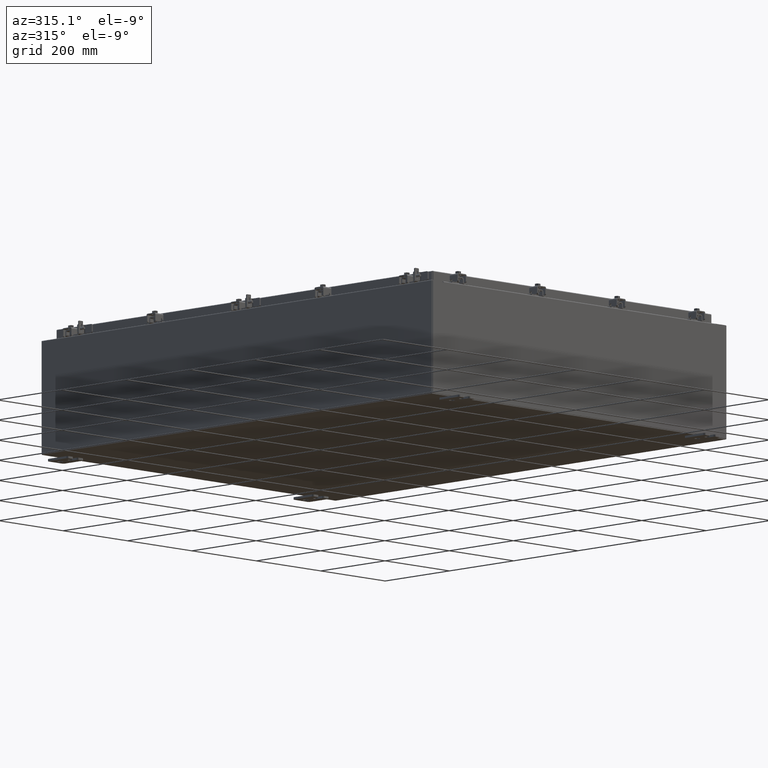
[diagram: clean part render]
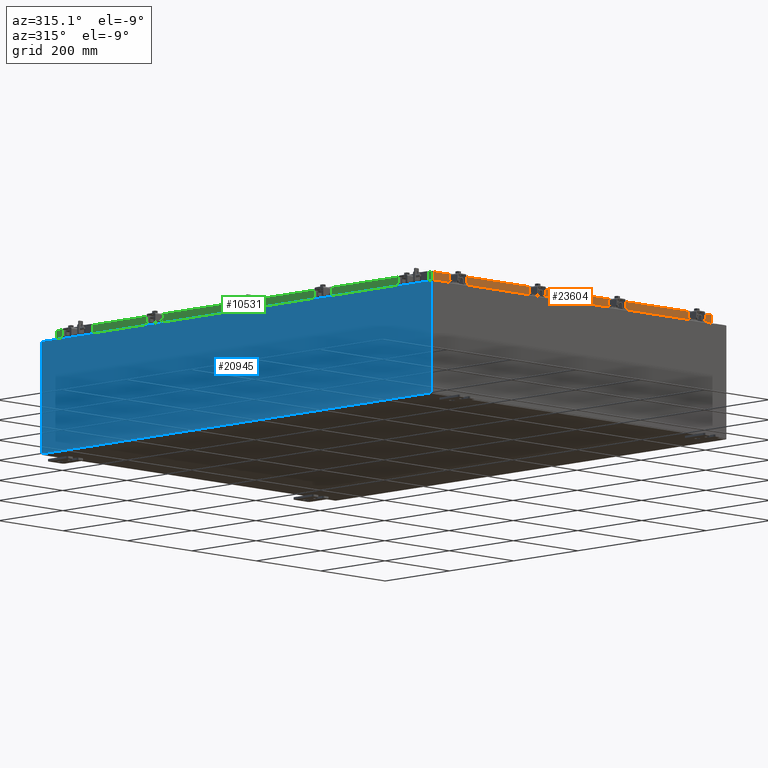
[diagram: same view with three faces highlighted in distinct colors, each labeled with its STEP entity id]
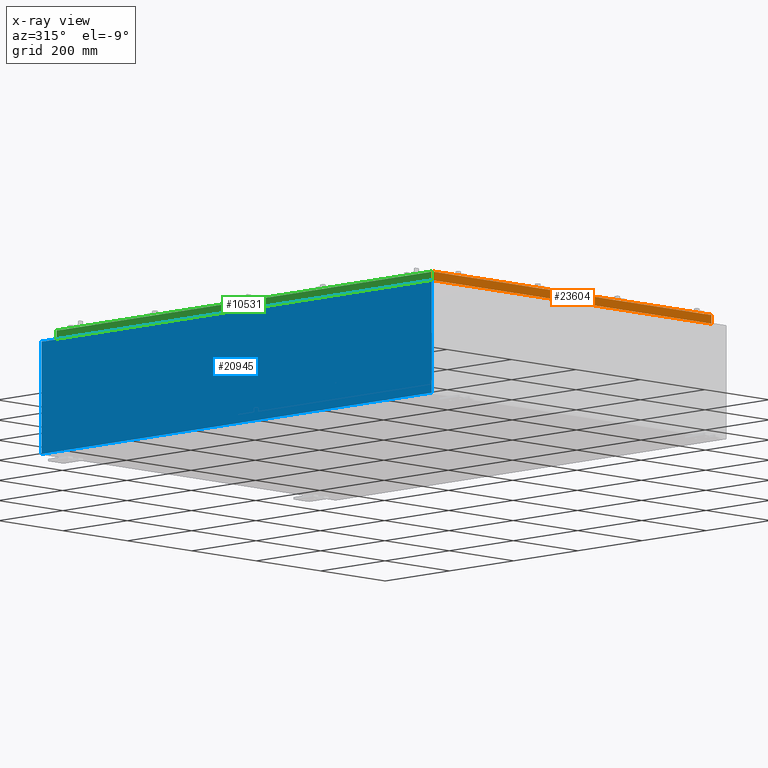
[diagram: x-ray of the same camera — body ghosted, the three highlighted faces saturated]
A machine part, auxiliary view with three faces highlighted in distinct colors.
The next image is the same camera in x-ray (body ghosted, the three faces saturated) — at least one of them is partly hidden behind the body in this view.
Their STEP definitions:

[orange] entity #23604 — the highlighted planar face has unit normal (0, 1, 0).
#542 = VERTEX_POINT ( 'NONE', #11356 ) ;
#703 = LINE ( 'NONE', #5207, #16990 ) ;
#742 = EDGE_CURVE ( 'NONE', #4543, #4402, #3364, .T. ) ;
#1936 = EDGE_CURVE ( 'NONE', #15648, #16481, #8737, .T. ) ;
#2306 = EDGE_CURVE ( 'NONE', #16662, #4543, #703, .T. ) ;
#2374 = VECTOR ( 'NONE', #17354, 39.37007874015748100 ) ;
#2463 = CARTESIAN_POINT ( 'NONE',  ( 17.07800000000000300, -23.09399999999999400, -0.08769999999999589200 ) ) ;
#2570 = CARTESIAN_POINT ( 'NONE',  ( 17.07800000000000300, -23.09400000000000100, -0.8499999999999996400 ) ) ;
#2731 = CARTESIAN_POINT ( 'NONE',  ( -2.955348287419252300E-015, -23.09399999999999400, 2.608136560115737200E-016 ) ) ;
#3364 = LINE ( 'NONE', #15265, #19686 ) ;
#3397 = LINE ( 'NONE', #4857, #24746 ) ;
#4312 = CARTESIAN_POINT ( 'NONE',  ( -16.98915786437626700, -23.09399999999999400, -0.8499999999999954300 ) ) ;
#4402 = VERTEX_POINT ( 'NONE', #9738 ) ;
#4543 = VERTEX_POINT ( 'NONE', #25132 ) ;
#4857 = CARTESIAN_POINT ( 'NONE',  ( 16.23915786437626700, -23.09400000000000100, -0.8499999999999990900 ) ) ;
#5143 = DIRECTION ( 'NONE',  ( -0.0000000000000000000, 3.607333059089402100E-031, -1.000000000000000000 ) ) ;
#5207 = CARTESIAN_POINT ( 'NONE',  ( 16.98915786437627100, -23.09399999999999400, -0.07470000000000000300 ) ) ;
#5567 = LINE ( 'NONE', #2570, #26914 ) ;
#6565 = ORIENTED_EDGE ( 'NONE', *, *, #2306, .F. ) ;
#6708 = LINE ( 'NONE', #2463, #2374 ) ;
#6872 = DIRECTION ( 'NONE',  ( -1.000000000000000000, 1.279703943630056600E-016, 1.239713195391617400E-016 ) ) ;
#7443 = FACE_OUTER_BOUND ( 'NONE', #26455, .T. ) ;
#7490 = EDGE_CURVE ( 'NONE', #4402, #542, #3397, .T. ) ;
#8059 = VECTOR ( 'NONE', #16994, 39.37007874015748100 ) ;
#8737 = LINE ( 'NONE', #25875, #8059 ) ;
#9738 = CARTESIAN_POINT ( 'NONE',  ( 16.23915786437626700, -23.09400000000000100, -0.8499999999999990900 ) ) ;
#10540 = ORIENTED_EDGE ( 'NONE', *, *, #25725, .F. ) ;
#11356 = CARTESIAN_POINT ( 'NONE',  ( -16.23915786437626400, -23.09400000000000100, -0.8499999999999990900 ) ) ;
#11376 = DIRECTION ( 'NONE',  ( 1.279703943630056600E-016, 1.000000000000000000, 3.607333059089401300E-031 ) ) ;
#12205 = ORIENTED_EDGE ( 'NONE', *, *, #7490, .F. ) ;
#12399 = ORIENTED_EDGE ( 'NONE', *, *, #1936, .T. ) ;
#14480 = DIRECTION ( 'NONE',  ( -1.000000000000000000, 0.0000000000000000000, 0.0000000000000000000 ) ) ;
#15210 = DIRECTION ( 'NONE',  ( -1.000000000000000000, 1.279703943630056600E-016, 1.239713195391617400E-016 ) ) ;
#15265 = CARTESIAN_POINT ( 'NONE',  ( 17.07800000000000300, -23.09400000000000100, -0.8499999999999996400 ) ) ;
#15301 = AXIS2_PLACEMENT_3D ( 'NONE', #2731, #11376, #26251 ) ;
#15648 = VERTEX_POINT ( 'NONE', #24840 ) ;
#16481 = VERTEX_POINT ( 'NONE', #4312 ) ;
#16662 = VERTEX_POINT ( 'NONE', #24055 ) ;
#16990 = VECTOR ( 'NONE', #5143, 39.37007874015748100 ) ;
#16994 = DIRECTION ( 'NONE',  ( 0.0000000000000000000, 3.607333059089402100E-031, -1.000000000000000000 ) ) ;
#17354 = DIRECTION ( 'NONE',  ( 1.000000000000000000, -1.279703943630056600E-016, 1.368455531567204500E-048 ) ) ;
#19686 = VECTOR ( 'NONE', #15210, 39.37007874015748100 ) ;
#20847 = EDGE_CURVE ( 'NONE', #542, #16481, #5567, .T. ) ;
#22483 = ORIENTED_EDGE ( 'NONE', *, *, #20847, .F. ) ;
#23604 = ADVANCED_FACE ( 'NONE', ( #7443 ), #24093, .F. ) ;
#24055 = CARTESIAN_POINT ( 'NONE',  ( 16.98915786437627100, -23.09399999999999400, -0.08769999999999589200 ) ) ;
#24093 = PLANE ( 'NONE',  #15301 ) ;
#24401 = ORIENTED_EDGE ( 'NONE', *, *, #742, .F. ) ;
#24746 = VECTOR ( 'NONE', #14480, 39.37007874015748100 ) ;
#24840 = CARTESIAN_POINT ( 'NONE',  ( -16.98915786437626700, -23.09399999999999400, -0.08769999999999589200 ) ) ;
#25132 = CARTESIAN_POINT ( 'NONE',  ( 16.98915786437627100, -23.09399999999999400, -0.8499999999999996400 ) ) ;
#25725 = EDGE_CURVE ( 'NONE', #15648, #16662, #6708, .T. ) ;
#25875 = CARTESIAN_POINT ( 'NONE',  ( -16.98915786437626700, -23.09399999999999400, 2.608136560115737200E-016 ) ) ;
#26251 = DIRECTION ( 'NONE',  ( -1.000000000000000000, 1.279703943630056600E-016, 0.0000000000000000000 ) ) ;
#26455 = EDGE_LOOP ( 'NONE', ( #10540, #12399, #22483, #12205, #24401, #6565 ) ) ;
#26914 = VECTOR ( 'NONE', #6872, 39.37007874015748100 ) ;

[blue] entity #20945 — the highlighted planar face has unit normal (1, 0, 0).
#779 = CARTESIAN_POINT ( 'NONE',  ( -18.00000000000000400, -23.92529999999999600, -6.367630515150756800E-014 ) ) ;
#957 = CARTESIAN_POINT ( 'NONE',  ( -18.00000000000000400, 23.92529999999998900, 0.01299999999999984700 ) ) ;
#1466 = AXIS2_PLACEMENT_3D ( 'NONE', #4988, #22047, #9322 ) ;
#2223 = VERTEX_POINT ( 'NONE', #18523 ) ;
#2738 = CARTESIAN_POINT ( 'NONE',  ( -18.00000000000003900, -23.92529999999998600, 9.837600000000000100 ) ) ;
#2858 = PLANE ( 'NONE',  #1466 ) ;
#3511 = VECTOR ( 'NONE', #13635, 39.37007874015748100 ) ;
#4414 = ORIENTED_EDGE ( 'NONE', *, *, #17294, .T. ) ;
#4988 = CARTESIAN_POINT ( 'NONE',  ( -18.00000000000000400, 0.0000000000000000000, -6.367630515150756800E-014 ) ) ;
#6137 = CARTESIAN_POINT ( 'NONE',  ( -18.00000000000000400, -23.92529999999998600, 0.01299999999999984700 ) ) ;
#7597 = ORIENTED_EDGE ( 'NONE', *, *, #14313, .T. ) ;
#8663 = CARTESIAN_POINT ( 'NONE',  ( -18.00000000000000400, 23.92529999999998900, 0.01299999999999984300 ) ) ;
#9051 = DIRECTION ( 'NONE',  ( 3.523082860860888200E-015, 0.0000000000000000000, -1.000000000000000000 ) ) ;
#9322 = DIRECTION ( 'NONE',  ( 3.523082860860887800E-015, 0.0000000000000000000, -1.000000000000000000 ) ) ;
#10299 = VERTEX_POINT ( 'NONE', #6137 ) ;
#12453 = VERTEX_POINT ( 'NONE', #2738 ) ;
#12888 = LINE ( 'NONE', #26395, #3511 ) ;
#13173 = ORIENTED_EDGE ( 'NONE', *, *, #27468, .F. ) ;
#13198 = EDGE_CURVE ( 'NONE', #12453, #2223, #12888, .T. ) ;
#13273 = DIRECTION ( 'NONE',  ( -3.523082860860888200E-015, 0.0000000000000000000, 1.000000000000000000 ) ) ;
#13635 = DIRECTION ( 'NONE',  ( 0.0000000000000000000, 1.000000000000000000, 0.0000000000000000000 ) ) ;
#13658 = VECTOR ( 'NONE', #26484, 39.37007874015748100 ) ;
#14313 = EDGE_CURVE ( 'NONE', #10299, #12453, #27137, .T. ) ;
#17294 = EDGE_CURVE ( 'NONE', #2223, #17823, #26666, .T. ) ;
#17823 = VERTEX_POINT ( 'NONE', #8663 ) ;
#18523 = CARTESIAN_POINT ( 'NONE',  ( -18.00000000000003900, 23.92529999999998900, 9.837600000000000100 ) ) ;
#19954 = LINE ( 'NONE', #957, #13658 ) ;
#20945 = ADVANCED_FACE ( 'NONE', ( #21217 ), #2858, .F. ) ;
#21217 = FACE_OUTER_BOUND ( 'NONE', #26183, .T. ) ;
#22047 = DIRECTION ( 'NONE',  ( 1.000000000000000000, 0.0000000000000000000, 3.523082860860887800E-015 ) ) ;
#22794 = VECTOR ( 'NONE', #13273, 39.37007874015748100 ) ;
#23623 = ORIENTED_EDGE ( 'NONE', *, *, #13198, .T. ) ;
#23937 = CARTESIAN_POINT ( 'NONE',  ( -18.00000000000000400, 23.92529999999998900, -6.367630515150756800E-014 ) ) ;
#26001 = VECTOR ( 'NONE', #9051, 39.37007874015748100 ) ;
#26183 = EDGE_LOOP ( 'NONE', ( #23623, #4414, #13173, #7597 ) ) ;
#26395 = CARTESIAN_POINT ( 'NONE',  ( -18.00000000000003900, -23.92529999999998900, 9.837600000000000100 ) ) ;
#26484 = DIRECTION ( 'NONE',  ( -0.0000000000000000000, 1.000000000000000000, -0.0000000000000000000 ) ) ;
#26666 = LINE ( 'NONE', #23937, #26001 ) ;
#27137 = LINE ( 'NONE', #779, #22794 ) ;
#27468 = EDGE_CURVE ( 'NONE', #10299, #17823, #19954, .T. ) ;

[green] entity #10531 — the highlighted planar face has unit normal (1, 0, -0).
#326 = CARTESIAN_POINT ( 'NONE',  ( -17.07800000000000300, 23.00515786437626200, -0.8499999999999940900 ) ) ;
#1157 = CARTESIAN_POINT ( 'NONE',  ( -17.07799999999999900, 23.00515786437626200, 2.090458211578980900E-013 ) ) ;
#1253 = VECTOR ( 'NONE', #12754, 39.37007874015748100 ) ;
#1932 = CARTESIAN_POINT ( 'NONE',  ( -17.07799999999999900, 23.00515786437626200, -0.08770000000000007000 ) ) ;
#2451 = PLANE ( 'NONE',  #17928 ) ;
#2792 = EDGE_CURVE ( 'NONE', #6550, #22798, #24669, .T. ) ;
#3324 = LINE ( 'NONE', #1157, #14010 ) ;
#3332 = CARTESIAN_POINT ( 'NONE',  ( -17.07800000000000300, -23.09399999999999400, -0.8499999999999996400 ) ) ;
#3924 = EDGE_LOOP ( 'NONE', ( #4391, #10311, #21707, #11883, #7893, #7414 ) ) ;
#4391 = ORIENTED_EDGE ( 'NONE', *, *, #24996, .F. ) ;
#4589 = DIRECTION ( 'NONE',  ( -2.818880942772360100E-015, 0.0000000000000000000, -1.000000000000000000 ) ) ;
#4632 = DIRECTION ( 'NONE',  ( 3.417889107165661600E-031, -1.000000000000000000, -9.316371385484559400E-046 ) ) ;
#4712 = VERTEX_POINT ( 'NONE', #26941 ) ;
#4739 = EDGE_CURVE ( 'NONE', #22798, #20082, #11934, .T. ) ;
#6055 = EDGE_CURVE ( 'NONE', #24595, #4712, #6487, .T. ) ;
#6487 = LINE ( 'NONE', #21023, #17135 ) ;
#6550 = VERTEX_POINT ( 'NONE', #17319 ) ;
#7414 = ORIENTED_EDGE ( 'NONE', *, *, #6055, .F. ) ;
#7681 = VECTOR ( 'NONE', #11482, 39.37007874015748100 ) ;
#7893 = ORIENTED_EDGE ( 'NONE', *, *, #11427, .F. ) ;
#10311 = ORIENTED_EDGE ( 'NONE', *, *, #16865, .T. ) ;
#10531 = ADVANCED_FACE ( 'NONE', ( #12965 ), #2451, .F. ) ;
#11024 = CARTESIAN_POINT ( 'NONE',  ( -17.07799999999998900, -22.25515786437625500, -0.8500000000000026400 ) ) ;
#11427 = EDGE_CURVE ( 'NONE', #4712, #6550, #15601, .T. ) ;
#11482 = DIRECTION ( 'NONE',  ( -0.0000000000000000000, 1.000000000000000000, -0.0000000000000000000 ) ) ;
#11883 = ORIENTED_EDGE ( 'NONE', *, *, #2792, .F. ) ;
#11934 = LINE ( 'NONE', #12601, #1253 ) ;
#12601 = CARTESIAN_POINT ( 'NONE',  ( -17.07800000000000300, -23.09399999999999400, -0.8499999999999996400 ) ) ;
#12754 = DIRECTION ( 'NONE',  ( -4.379057701015054300E-047, 1.000000000000000000, 1.212498568245375500E-016 ) ) ;
#12965 = FACE_OUTER_BOUND ( 'NONE', #3924, .T. ) ;
#14010 = VECTOR ( 'NONE', #24615, 39.37007874015748100 ) ;
#14417 = VECTOR ( 'NONE', #4632, 39.37007874015748100 ) ;
#15601 = LINE ( 'NONE', #3332, #20591 ) ;
#16865 = EDGE_CURVE ( 'NONE', #17770, #20082, #3324, .T. ) ;
#17135 = VECTOR ( 'NONE', #20356, 39.37007874015748100 ) ;
#17319 = CARTESIAN_POINT ( 'NONE',  ( -17.07799999999998900, -22.25515786437626200, -0.8500000000000026400 ) ) ;
#17340 = DIRECTION ( 'NONE',  ( 1.000000000000000000, 3.417889107165661600E-031, -2.818880942772360100E-015 ) ) ;
#17770 = VERTEX_POINT ( 'NONE', #1932 ) ;
#17928 = AXIS2_PLACEMENT_3D ( 'NONE', #21548, #17340, #4589 ) ;
#18232 = DIRECTION ( 'NONE',  ( -4.379057701015054300E-047, 1.000000000000000000, 1.212498568245375500E-016 ) ) ;
#19431 = CARTESIAN_POINT ( 'NONE',  ( -17.07799999999999900, -23.09399999999999400, -0.08770000000000007000 ) ) ;
#20063 = LINE ( 'NONE', #19431, #14417 ) ;
#20082 = VERTEX_POINT ( 'NONE', #326 ) ;
#20356 = DIRECTION ( 'NONE',  ( -2.818880942772360100E-015, 6.982962677686265900E-015, -1.000000000000000000 ) ) ;
#20390 = CARTESIAN_POINT ( 'NONE',  ( -17.07799999999999900, -23.00515786437626200, -0.08770000000000007000 ) ) ;
#20591 = VECTOR ( 'NONE', #18232, 39.37007874015748100 ) ;
#21023 = CARTESIAN_POINT ( 'NONE',  ( -17.07799999999999900, -23.00515786437626200, -0.07469999999999978000 ) ) ;
#21548 = CARTESIAN_POINT ( 'NONE',  ( -17.07799999999999900, -5.837071017217516000E-030, 4.840166239667794100E-014 ) ) ;
#21707 = ORIENTED_EDGE ( 'NONE', *, *, #4739, .F. ) ;
#22798 = VERTEX_POINT ( 'NONE', #23940 ) ;
#23940 = CARTESIAN_POINT ( 'NONE',  ( -17.07799999999998900, 22.25515786437623700, -0.8500000000000026400 ) ) ;
#24595 = VERTEX_POINT ( 'NONE', #20390 ) ;
#24615 = DIRECTION ( 'NONE',  ( -2.818880942772360100E-015, 6.982962677686265900E-015, -1.000000000000000000 ) ) ;
#24669 = LINE ( 'NONE', #11024, #7681 ) ;
#24996 = EDGE_CURVE ( 'NONE', #17770, #24595, #20063, .T. ) ;
#26941 = CARTESIAN_POINT ( 'NONE',  ( -17.07800000000000300, -23.00515786437625800, -0.8499999999999996400 ) ) ;